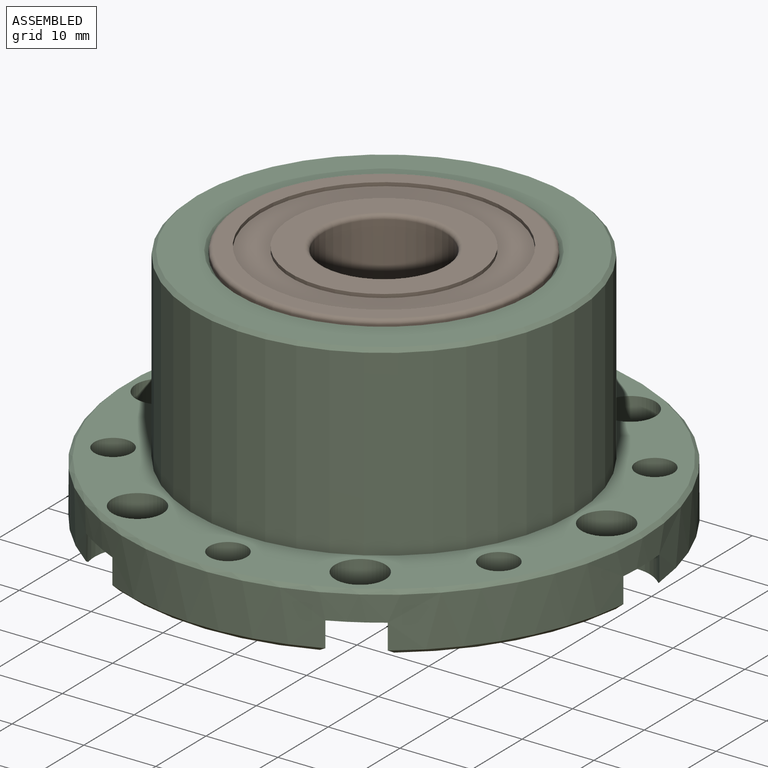
[diagram: assembled view]
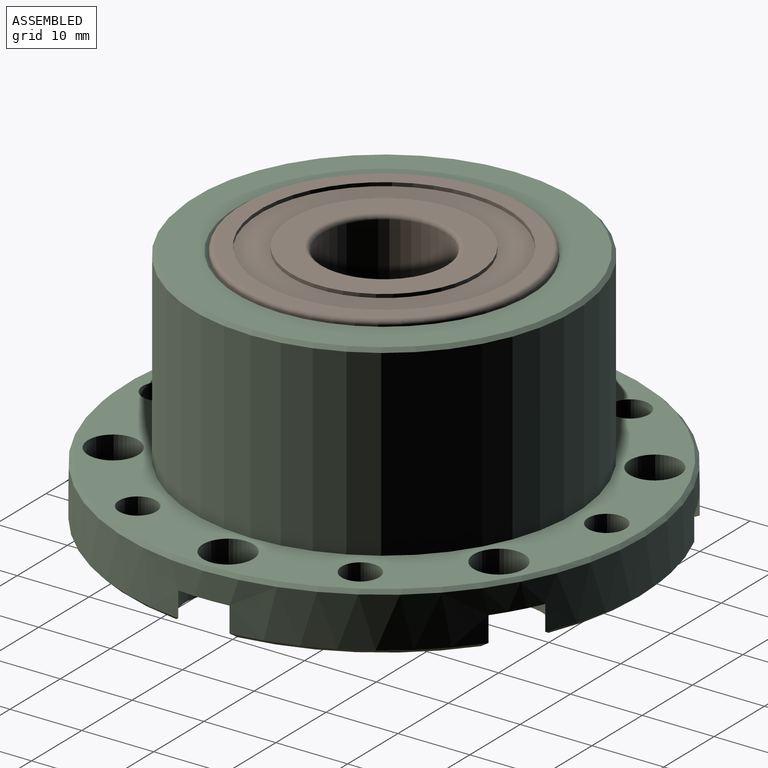
[diagram: assembled view, second angle]
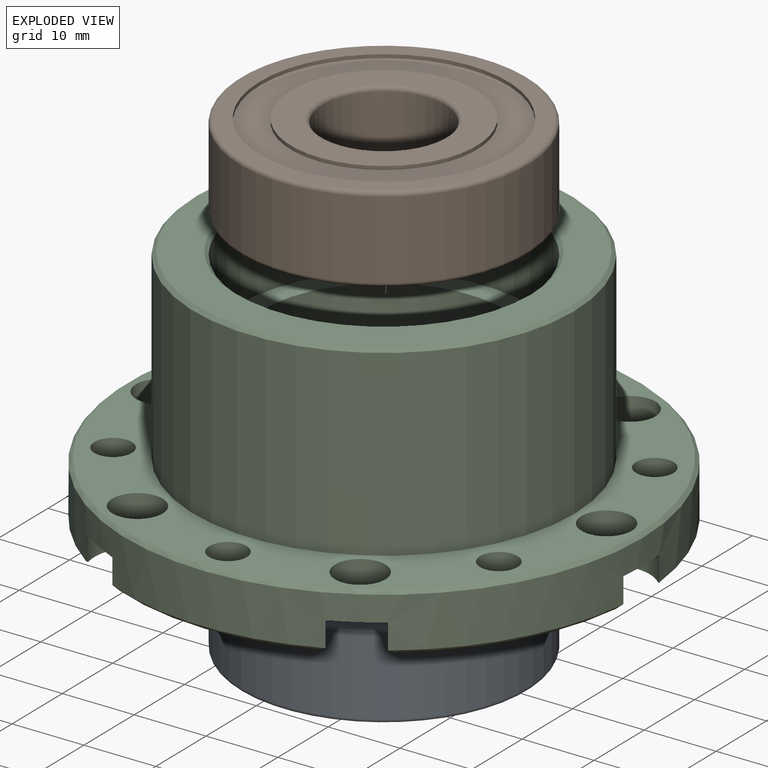
[diagram: exploded view]
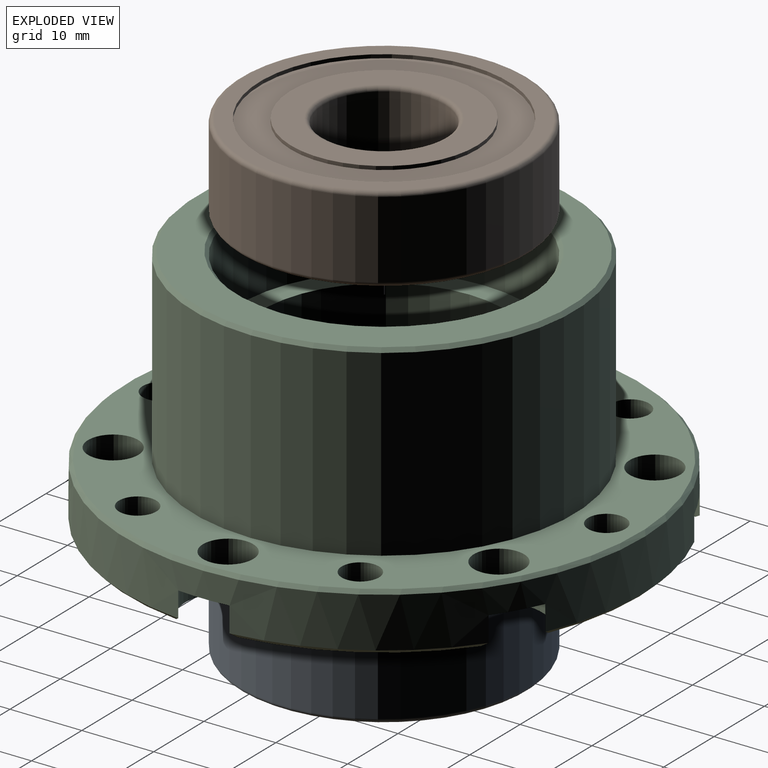
[diagram: exploded view, second angle]
ASSEMBLY  parts=3 mates=2
PART A: 16 faces, bbox 42.6x42.6x12 mm
  f0: torus R=19.4mm, axis (0,0,-1), area 117.1mm2, adj f4,f10
  f1: torus R=9.1mm, axis (0,0,-1), area 51.6mm2, adj f7,f12
  f2: torus R=19.4mm, axis (0,0,-1), area 117.1mm2, adj f4,f15
  f3: torus R=9.1mm, axis (0,0,-1), area 51.6mm2, adj f7,f13
  f4: cylinder r=20mm len=40mm, axis (0,0,-1), area 1357.2mm2, adj f0,f2
  f5: cylinder r=15.95mm len=31.9mm, axis (0,0,-1), area 50.1mm2, adj f14,f15
  f6: cylinder r=11.25mm len=22.5mm, axis (0,0,-1), area 35.3mm2, adj f13,f14
  f7: cylinder r=8.5mm len=17mm, axis (0,0,-1), area 576.8mm2, adj f1,f3
  f8: cylinder r=12.95mm len=25.9mm, axis (0,0,-1), area 40.7mm2, adj f11,f12
  f9: cylinder r=17.25mm len=34.5mm, axis (0,0,-1), area 54.2mm2, adj f10,f11
  f10: plane 38.8x38.8mm, normal (0,0,-1), area 247.5mm2, adj f0,f9
  f11: plane 34.5x34.5mm, normal (0,0,-1), area 408mm2, adj f8,f9
  f12: plane 25.9x25.9mm, normal (0,0,-1), area 266.7mm2, adj f1,f8
  f13: plane 22.5x22.5mm, normal (0,0,1), area 137.5mm2, adj f3,f6
  f14: plane 31.9x31.9mm, normal (0,0,1), area 401.6mm2, adj f5,f6
  f15: plane 38.8x38.8mm, normal (0,0,1), area 383.1mm2, adj f2,f5
PART B: 16 faces, bbox 43.2x43.2x12 mm
  f0: torus R=19.4mm, axis (0,0,1), area 117.1mm2, adj f4,f10
  f1: torus R=9.1mm, axis (0,0,1), area 51.6mm2, adj f7,f12
  f2: torus R=19.4mm, axis (0,0,1), area 117.1mm2, adj f4,f15
  f3: torus R=9.1mm, axis (0,0,1), area 51.6mm2, adj f7,f13
  f4: cylinder r=20mm len=40mm, axis (0,0,1), area 1357.2mm2, adj f0,f2
  f5: cylinder r=15.95mm len=31.9mm, axis (0,0,1), area 50.1mm2, adj f14,f15
  f6: cylinder r=11.25mm len=22.5mm, axis (0,0,1), area 35.3mm2, adj f13,f14
  f7: cylinder r=8.5mm len=17mm, axis (0,0,1), area 576.8mm2, adj f1,f3
  f8: cylinder r=12.95mm len=25.9mm, axis (0,0,1), area 40.7mm2, adj f11,f12
  f9: cylinder r=17.25mm len=34.5mm, axis (0,0,1), area 54.2mm2, adj f10,f11
  f10: plane 38.8x38.8mm, normal (0,0,1), area 247.5mm2, adj f0,f9
  f11: plane 34.5x34.5mm, normal (0,0,1), area 408mm2, adj f8,f9
  f12: plane 25.9x25.9mm, normal (0,0,1), area 266.7mm2, adj f1,f8
  f13: plane 22.5x22.5mm, normal (0,0,-1), area 137.5mm2, adj f3,f6
  f14: plane 31.9x31.9mm, normal (0,0,-1), area 401.6mm2, adj f5,f6
  f15: plane 38.8x38.8mm, normal (0,0,-1), area 383.1mm2, adj f2,f5
PART C: 44 faces, bbox 72x72x34 mm
  f0: cylinder r=3.5mm len=7mm, axis (0,0,1), area 88mm2, adj f27,f43
  f1: cylinder r=6mm len=12mm, axis (0,0,1), area 119.8mm2, adj f26,f28,f29,f30,f43
  f2: cylinder r=3.5mm len=7mm, axis (0,0,1), area 88mm2, adj f27,f42
  f3: cylinder r=6mm len=12mm, axis (0,0,1), area 119.8mm2, adj f26,f28,f30,f31,f42
  f4: cylinder r=3.5mm len=7mm, axis (0,0,1), area 88mm2, adj f27,f41
  f5: cylinder r=6mm len=12mm, axis (0,0,1), area 119.8mm2, adj f26,f28,f31,f32,f41
  f6: cylinder r=3.5mm len=7mm, axis (0,0,1), area 88mm2, adj f27,f40
  f7: cylinder r=6mm len=12mm, axis (0,0,1), area 119.8mm2, adj f26,f28,f32,f33,f40
  f8: cylinder r=3.5mm len=7mm, axis (0,0,1), area 88mm2, adj f27,f39
  f9: cylinder r=6mm len=12mm, axis (0,0,1), area 119.8mm2, adj f26,f28,f33,f34,f39
  f10: cylinder r=2.6mm len=8mm, axis (0,0,-1), area 130.7mm2, adj f27,f28
  f11: cylinder r=2.6mm len=8mm, axis (0,0,-1), area 130.7mm2, adj f27,f28
  f12: cylinder r=2.6mm len=8mm, axis (0,0,-1), area 130.7mm2, adj f27,f28
  f13: cylinder r=2.6mm len=8mm, axis (0,0,-1), area 130.7mm2, adj f27,f28
  f14: cylinder r=2.6mm len=8mm, axis (0,0,-1), area 130.7mm2, adj f27,f28
  f15: cylinder r=3.5mm len=7mm, axis (0,0,1), area 88mm2, adj f27,f38
  f16: cylinder r=6mm len=12mm, axis (0,0,1), area 119.8mm2, adj f26,f28,f29,f34,f38
  f17: cylinder r=2.6mm len=8mm, axis (0,0,-1), area 130.7mm2, adj f27,f28
  f18: cone r=20mm half-angle=45deg, axis (0,0,-1), area 90mm2, adj f22,f28
  f19: cone r=35.5mm half-angle=45deg, axis (0,0,-1), area 158.8mm2, adj f26,f27
  f20: cone r=20mm half-angle=45deg, axis (0,0,1), area 90mm2, adj f23,f35
  f21: cone r=26mm half-angle=45deg, axis (0,0,-1), area 116.6mm2, adj f24,f35
  f22: cylinder r=20mm len=40mm, axis (0,0,1), area 1445.1mm2, adj f18,f37
  f23: cylinder r=20mm len=40mm, axis (0,0,-1), area 1445.1mm2, adj f20,f36
  f24: cylinder r=26.5mm len=53mm, axis (0,0,1), area 4245.9mm2, adj f21,f27
  f25: cylinder r=17mm len=34mm, axis (0,0,-1), area 1068.1mm2, adj f36,f37
  f26: cylinder r=36mm len=72mm, axis (0,0,1), area 1433.2mm2, adj f1,f3,f5,f7,f9,f16,f19,f29
  f27: plane 71x71mm, normal (0,0,1), area 1394.7mm2, adj f0,f2,f4,f6,f8,f10,f11,f12
  f28: plane 71x70.49mm, normal (0,0,-1), area 1885.8mm2, adj f1,f3,f5,f7,f9,f10,f11,f12
  f29: cone r=36mm half-angle=45deg, axis (0,0,1), area 20.9mm2, adj f1,f16,f26,f28
  f30: cone r=36mm half-angle=45deg, axis (0,0,1), area 20.9mm2, adj f1,f3,f26,f28
  f31: cone r=36mm half-angle=45deg, axis (0,0,1), area 20.9mm2, adj f3,f5,f26,f28
  f32: cone r=36mm half-angle=45deg, axis (0,0,1), area 20.9mm2, adj f5,f7,f26,f28
  f33: cone r=36mm half-angle=45deg, axis (0,0,1), area 20.9mm2, adj f7,f9,f26,f28
  f34: cone r=36mm half-angle=45deg, axis (0,0,1), area 20.9mm2, adj f9,f16,f26,f28
  f35: plane 52x52mm, normal (0,0,1), area 803.5mm2, adj f20,f21
  f36: plane 40x40mm, normal (0,0,1), area 348.7mm2, adj f23,f25
  f37: plane 40x40mm, normal (0,0,-1), area 348.7mm2, adj f22,f25
  f38: plane 12x11mm, normal (0,0,-1), area 69.7mm2, adj f15,f16,f26
  f39: plane 12x11.96mm, normal (0,0,-1), area 69.7mm2, adj f8,f9,f26
  f40: plane 12x11.96mm, normal (0,0,-1), area 69.7mm2, adj f6,f7,f26
  f41: plane 12x11mm, normal (0,0,-1), area 69.7mm2, adj f4,f5,f26
  f42: plane 12x11.96mm, normal (0,0,-1), area 69.7mm2, adj f2,f3,f26
  f43: plane 12x11.96mm, normal (0,0,-1), area 69.7mm2, adj f0,f1,f26
PLACE A t=(-24.69,-2.21,1.06)mm
PLACE B t=(-24.69,-2.21,1.76)mm
PLACE C t=(-24.69,-2.21,1.16)mm
MATE fastened C.f25 <-> A.f4  axis (0,0,1) through (-24.69,-2.21,1.66)mm
MATE fastened B.f4 <-> C.f18  axis (0,0,1) through (-24.69,-2.21,35.16)mm
